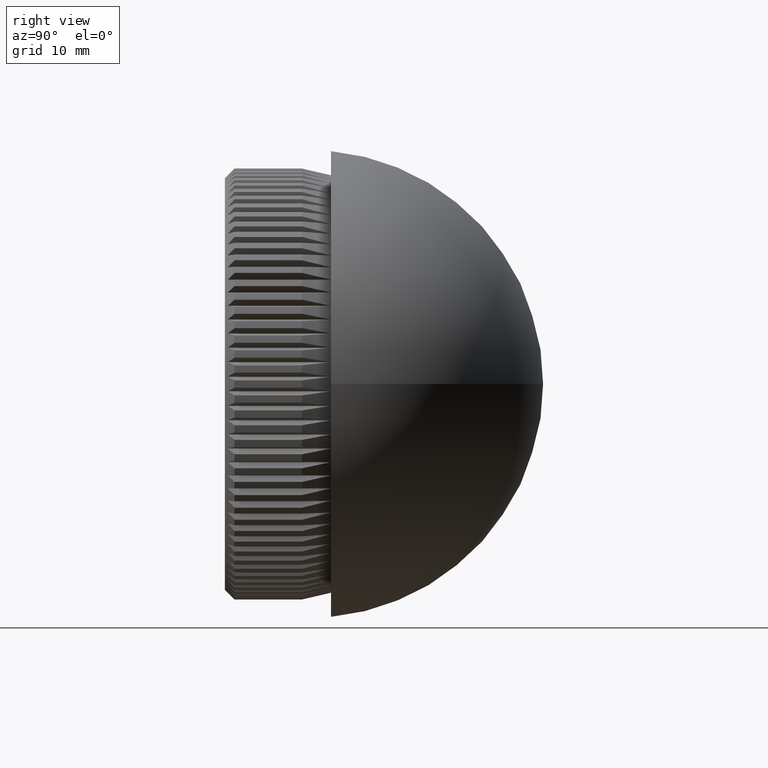
[diagram: clean part render]
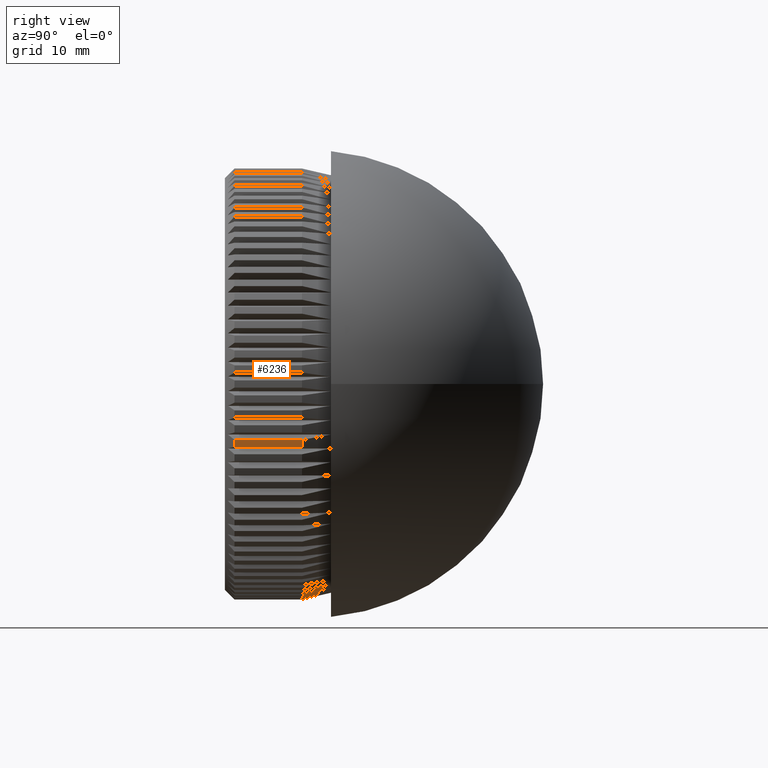
[diagram: same view with one face highlighted and labeled with its STEP entity id]
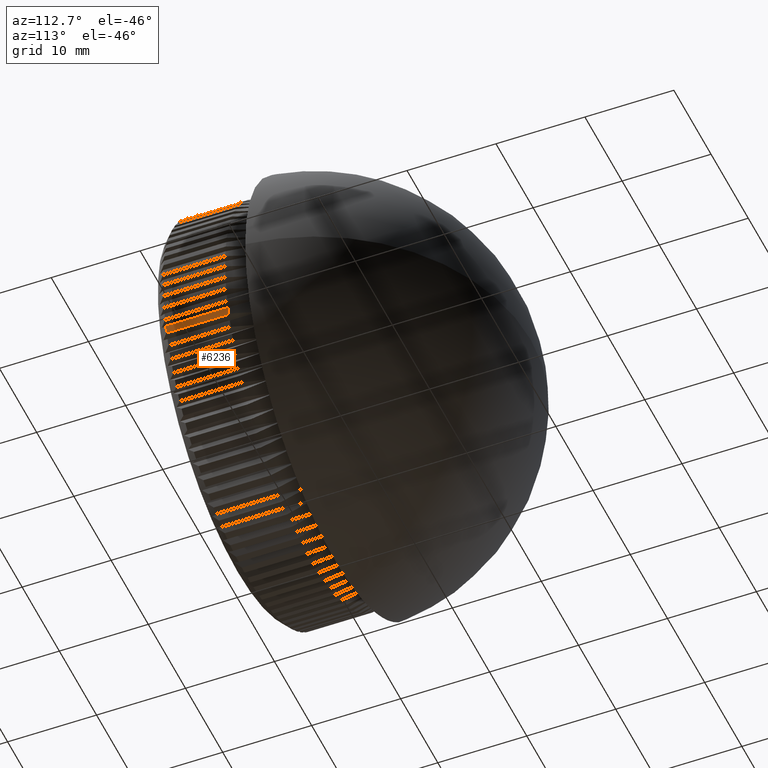
[diagram: same view with one face highlighted and labeled with its STEP entity id]
A machine part, right view. The second image highlights one B-rep face of the part: STEP entity #6236.
A second angle (auxiliary view) of the same face is appended — the face is thin or edge-on in the first view.
In plain terms, the highlighted cylindrical surface (partial cylindrical patch) has radius 22.35 mm, axis along (-0, -1, -0).
Its self-contained STEP definition (entity closure, byte-faithful):
#889 = FACE_OUTER_BOUND ( 'NONE', #22470, .T. ) ;
#907 = ORIENTED_EDGE ( 'NONE', *, *, #1795, .T. ) ;
#1795 = EDGE_CURVE ( 'NONE', #14071, #16600, #13834, .T. ) ;
#2027 = DIRECTION ( 'NONE',  ( -0.0000000000000000000, -1.000000000000000000, -0.0000000000000000000 ) ) ;
#2099 = DIRECTION ( 'NONE',  ( 0.0000000000000000000, 0.0000000000000000000, -1.000000000000000000 ) ) ;
#2846 = VERTEX_POINT ( 'NONE', #14171 ) ;
#3270 = DIRECTION ( 'NONE',  ( -0.0000000000000000000, -1.000000000000000000, -0.0000000000000000000 ) ) ;
#3935 = DIRECTION ( 'NONE',  ( 6.572520305780926700E-014, 0.0000000000000000000, -1.000000000000000000 ) ) ;
#4140 = EDGE_CURVE ( 'NONE', #16600, #5205, #10391, .T. ) ;
#5205 = VERTEX_POINT ( 'NONE', #20667 ) ;
#5509 = CARTESIAN_POINT ( 'NONE',  ( 0.0000000000000000000, 0.0000000000000000000, 0.0000000000000000000 ) ) ;
#5557 = DIRECTION ( 'NONE',  ( 0.0000000000000000000, 0.0000000000000000000, -1.000000000000000000 ) ) ;
#5879 = ORIENTED_EDGE ( 'NONE', *, *, #4140, .T. ) ;
#6236 = ADVANCED_FACE ( 'NONE', ( #889 ), #7555, .T. ) ;
#6716 = AXIS2_PLACEMENT_3D ( 'NONE', #10854, #19841, #5557 ) ;
#7274 = CARTESIAN_POINT ( 'NONE',  ( 0.0000000000000000000, 1.000000000000004400, 0.0000000000000000000 ) ) ;
#7555 = CYLINDRICAL_SURFACE ( 'NONE', #7816, 22.35000000000000100 ) ;
#7816 = AXIS2_PLACEMENT_3D ( 'NONE', #5509, #2027, #2099 ) ;
#8063 = VECTOR ( 'NONE', #3270, 1000.000000000000000 ) ;
#8349 = AXIS2_PLACEMENT_3D ( 'NONE', #7274, #14613, #3935 ) ;
#9224 = LINE ( 'NONE', #14085, #8063 ) ;
#10391 = LINE ( 'NONE', #20514, #10955 ) ;
#10840 = CARTESIAN_POINT ( 'NONE',  ( 21.58533386595062000, 8.000000000000000000, -5.796193742055670800 ) ) ;
#10854 = CARTESIAN_POINT ( 'NONE',  ( 0.0000000000000000000, 8.000000000000000000, 0.0000000000000000000 ) ) ;
#10955 = VECTOR ( 'NONE', #18802, 1000.000000000000000 ) ;
#11094 = EDGE_CURVE ( 'NONE', #14071, #2846, #9224, .T. ) ;
#11573 = ORIENTED_EDGE ( 'NONE', *, *, #11094, .F. ) ;
#13834 = CIRCLE ( 'NONE', #6716, 22.35000000000000100 ) ;
#14071 = VERTEX_POINT ( 'NONE', #20171 ) ;
#14085 = CARTESIAN_POINT ( 'NONE',  ( 21.37691601306362400, 33.00100000000000500, -6.523033172568113400 ) ) ;
#14171 = CARTESIAN_POINT ( 'NONE',  ( 21.37691601306362400, 1.000000000000004400, -6.523033172568113400 ) ) ;
#14613 = DIRECTION ( 'NONE',  ( 0.0000000000000000000, 1.000000000000000000, 0.0000000000000000000 ) ) ;
#15754 = CIRCLE ( 'NONE', #8349, 22.35000000000000100 ) ;
#16600 = VERTEX_POINT ( 'NONE', #10840 ) ;
#18650 = EDGE_CURVE ( 'NONE', #5205, #2846, #15754, .T. ) ;
#18802 = DIRECTION ( 'NONE',  ( -0.0000000000000000000, -1.000000000000000000, -0.0000000000000000000 ) ) ;
#19024 = ORIENTED_EDGE ( 'NONE', *, *, #18650, .T. ) ;
#19841 = DIRECTION ( 'NONE',  ( -0.0000000000000000000, -1.000000000000000000, -0.0000000000000000000 ) ) ;
#20171 = CARTESIAN_POINT ( 'NONE',  ( 21.37691601306362400, 8.000000000000000000, -6.523033172568113400 ) ) ;
#20514 = CARTESIAN_POINT ( 'NONE',  ( 21.58533386595062000, 33.00100000000000500, -5.796193742055670800 ) ) ;
#20667 = CARTESIAN_POINT ( 'NONE',  ( 21.58533386595062000, 1.000000000000000900, -5.796193742055670800 ) ) ;
#22470 = EDGE_LOOP ( 'NONE', ( #5879, #19024, #11573, #907 ) ) ;